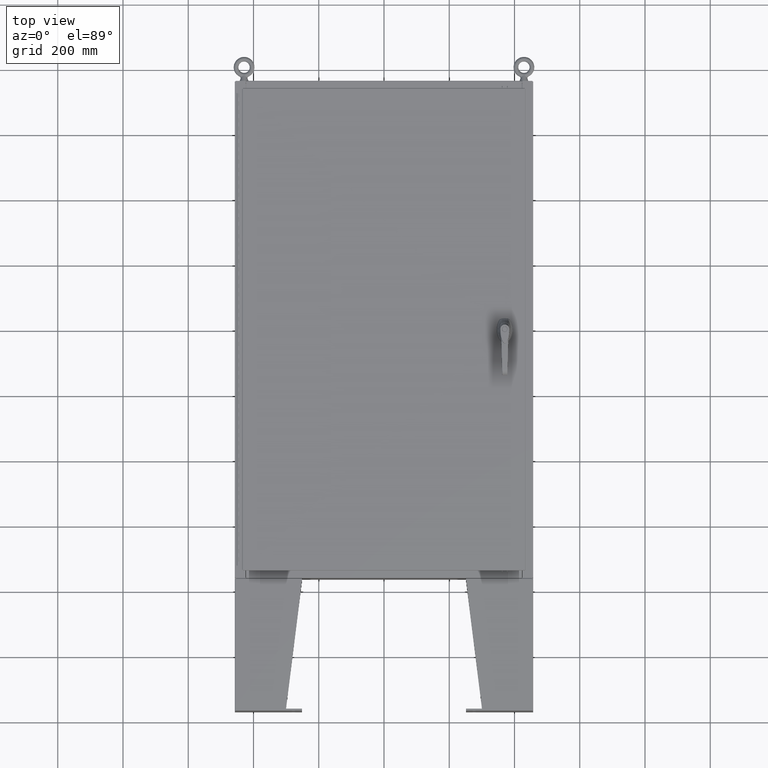
[diagram: clean part render]
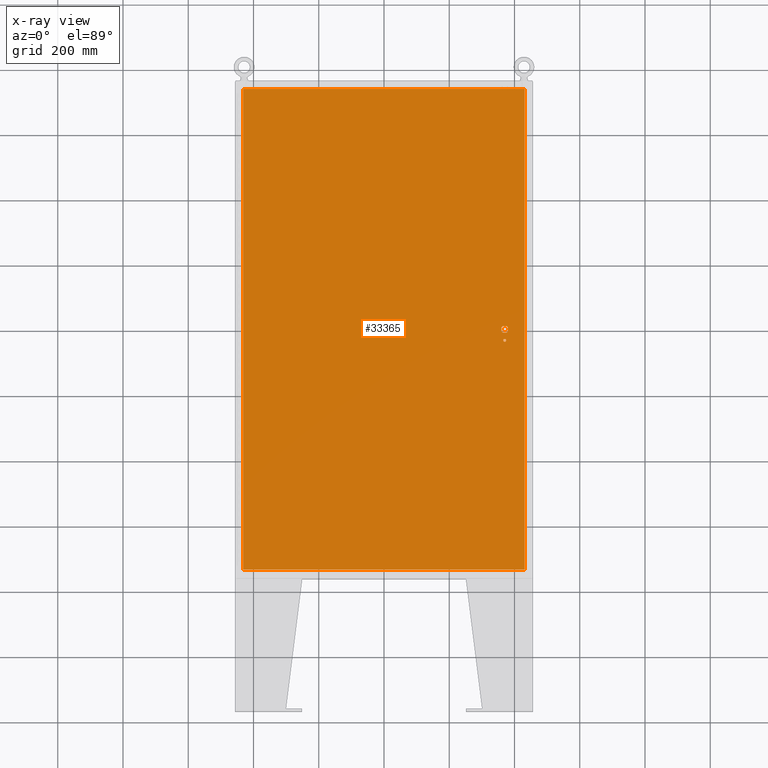
[diagram: x-ray — body ghosted, one internal face saturated and labeled with its STEP entity id]
A machine part, top view, then the same camera in x-ray: the body is ghosted and one INTERNAL B-rep face — a face not visible from any outside direction — is saturated and labeled: STEP entity #33365.
In plain terms, the highlighted planar face has unit normal (0, 0, -1).
Its self-contained STEP definition (entity closure, byte-faithful):
#464 = LINE ( 'NONE', #86708, #30545 ) ;
#1470 = CIRCLE ( 'NONE', #66741, 0.4499999999999168000 ) ;
#2530 = PLANE ( 'NONE',  #3092 ) ;
#3092 = AXIS2_PLACEMENT_3D ( 'NONE', #126693, #81592, #13928 ) ;
#3413 = EDGE_CURVE ( 'NONE', #13303, #71264, #39272, .T. ) ;
#4072 = DIRECTION ( 'NONE',  ( -1.000000000000000000, -5.329070518200740300E-015, 0.0000000000000000000 ) ) ;
#4290 = CARTESIAN_POINT ( 'NONE',  ( 14.74950000000000500, -1.338000000000000100, -0.07470000000000003000 ) ) ;
#5258 = AXIS2_PLACEMENT_3D ( 'NONE', #139553, #71761, #4072 ) ;
#6076 = EDGE_CURVE ( 'NONE', #73642, #117948, #106124, .T. ) ;
#6622 = ORIENTED_EDGE ( 'NONE', *, *, #44528, .T. ) ;
#8533 = VERTEX_POINT ( 'NONE', #41532 ) ;
#9210 = CARTESIAN_POINT ( 'NONE',  ( 14.17500000000007700, 0.2002273707563075900, -0.07470000000000003000 ) ) ;
#9986 = EDGE_CURVE ( 'NONE', #71264, #73642, #85796, .T. ) ;
#11187 = CARTESIAN_POINT ( 'NONE',  ( 14.37777262924369400, -0.4029999999999250300, -0.07470000000000003000 ) ) ;
#11290 = EDGE_CURVE ( 'NONE', #26010, #8533, #13071, .T. ) ;
#11892 = DIRECTION ( 'NONE',  ( -0.0000000000000000000, -0.0000000000000000000, 1.000000000000000000 ) ) ;
#12787 = DIRECTION ( 'NONE',  ( -0.0000000000000000000, -0.0000000000000000000, 1.000000000000000000 ) ) ;
#13071 = CIRCLE ( 'NONE', #5258, 0.4499999999999168000 ) ;
#13303 = VERTEX_POINT ( 'NONE', #141740 ) ;
#13480 = VERTEX_POINT ( 'NONE', #44281 ) ;
#13928 = DIRECTION ( 'NONE',  ( -1.000000000000000000, 0.0000000000000000000, -0.0000000000000000000 ) ) ;
#15629 = CARTESIAN_POINT ( 'NONE',  ( 0.0000000000000000000, 0.4029999999999252000, -0.07470000000000003000 ) ) ;
#16267 = VERTEX_POINT ( 'NONE', #37943 ) ;
#17483 = DIRECTION ( 'NONE',  ( -0.0000000000000000000, -0.0000000000000000000, 1.000000000000000000 ) ) ;
#17703 = DIRECTION ( 'NONE',  ( -0.0000000000000000000, -0.0000000000000000000, 1.000000000000000000 ) ) ;
#22175 = CARTESIAN_POINT ( 'NONE',  ( 16.99030000000000500, -29.00630000000000000, -0.07470000000000019700 ) ) ;
#25548 = AXIS2_PLACEMENT_3D ( 'NONE', #79628, #11892, #91018 ) ;
#25693 = VECTOR ( 'NONE', #53647, 39.37007874015748100 ) ;
#25713 = LINE ( 'NONE', #22175, #82315 ) ;
#26010 = VERTEX_POINT ( 'NONE', #59871 ) ;
#26193 = ORIENTED_EDGE ( 'NONE', *, *, #87468, .T. ) ;
#26255 = DIRECTION ( 'NONE',  ( 0.0000000000000000000, -1.000000000000000000, 0.0000000000000000000 ) ) ;
#26320 = CARTESIAN_POINT ( 'NONE',  ( 14.57800000000000500, 0.0000000000000000000, -0.07470000000000003000 ) ) ;
#26786 = FACE_OUTER_BOUND ( 'NONE', #102390, .T. ) ;
#29116 = CIRCLE ( 'NONE', #25548, 0.1715000000000011500 ) ;
#29814 = ORIENTED_EDGE ( 'NONE', *, *, #61515, .T. ) ;
#30388 = DIRECTION ( 'NONE',  ( 1.000000000000000000, 0.0000000000000000000, 0.0000000000000000000 ) ) ;
#30545 = VECTOR ( 'NONE', #30388, 39.37007874015748100 ) ;
#32401 = CARTESIAN_POINT ( 'NONE',  ( -16.99029999999999800, -29.00630000000000000, -0.07470000000000000300 ) ) ;
#33365 = ADVANCED_FACE ( 'NONE', ( #83367, #26786, #142016 ), #2530, .T. ) ;
#36949 = CARTESIAN_POINT ( 'NONE',  ( 14.40650000000000300, -1.338000000000000100, -0.07470000000000003000 ) ) ;
#37689 = DIRECTION ( 'NONE',  ( -1.000000000000000000, -5.329070518200740300E-015, 0.0000000000000000000 ) ) ;
#37867 = DIRECTION ( 'NONE',  ( 5.457491617345625800E-015, -1.000000000000000000, 0.0000000000000000000 ) ) ;
#37943 = CARTESIAN_POINT ( 'NONE',  ( 14.98099999999993100, -0.2002273707563067300, -0.07470000000000003000 ) ) ;
#39272 = LINE ( 'NONE', #66967, #65794 ) ;
#41132 = EDGE_CURVE ( 'NONE', #100807, #136410, #29116, .T. ) ;
#41463 = CARTESIAN_POINT ( 'NONE',  ( 16.99030000000000500, -29.00630000000000000, -0.07470000000000000300 ) ) ;
#41532 = CARTESIAN_POINT ( 'NONE',  ( 14.77822737075631400, 0.4029999999999250300, -0.07470000000000003000 ) ) ;
#43806 = ORIENTED_EDGE ( 'NONE', *, *, #6076, .F. ) ;
#44281 = CARTESIAN_POINT ( 'NONE',  ( 14.17500000000007700, -0.2002273707563079800, -0.07470000000000003000 ) ) ;
#44528 = EDGE_CURVE ( 'NONE', #66247, #13480, #82204, .T. ) ;
#45866 = VECTOR ( 'NONE', #96041, 39.37007874015748100 ) ;
#50188 = EDGE_CURVE ( 'NONE', #136410, #100807, #90065, .T. ) ;
#51450 = CARTESIAN_POINT ( 'NONE',  ( -16.99029999999999400, 29.00630000000000000, -0.07470000000000000300 ) ) ;
#53647 = DIRECTION ( 'NONE',  ( 0.0000000000000000000, -1.000000000000000000, 0.0000000000000000000 ) ) ;
#53882 = LINE ( 'NONE', #117066, #114145 ) ;
#54791 = ORIENTED_EDGE ( 'NONE', *, *, #9986, .F. ) ;
#55967 = EDGE_CURVE ( 'NONE', #78353, #86353, #464, .T. ) ;
#59871 = CARTESIAN_POINT ( 'NONE',  ( 14.98099999999993100, 0.2002273707563075900, -0.07470000000000003000 ) ) ;
#61515 = EDGE_CURVE ( 'NONE', #86353, #16267, #133858, .T. ) ;
#62559 = EDGE_CURVE ( 'NONE', #117948, #13303, #25713, .T. ) ;
#65794 = VECTOR ( 'NONE', #86793, 39.37007874015748100 ) ;
#66247 = VERTEX_POINT ( 'NONE', #9210 ) ;
#66741 = AXIS2_PLACEMENT_3D ( 'NONE', #80492, #12787, #91902 ) ;
#66967 = CARTESIAN_POINT ( 'NONE',  ( 16.99030000000000500, 29.00630000000000300, -0.07469999999999804600 ) ) ;
#67641 = ORIENTED_EDGE ( 'NONE', *, *, #92305, .F. ) ;
#70150 = CARTESIAN_POINT ( 'NONE',  ( 14.37777262924369400, 0.4029999999999252000, -0.07470000000000003000 ) ) ;
#71264 = VERTEX_POINT ( 'NONE', #51450 ) ;
#71761 = DIRECTION ( 'NONE',  ( -0.0000000000000000000, -0.0000000000000000000, 1.000000000000000000 ) ) ;
#73642 = VERTEX_POINT ( 'NONE', #32401 ) ;
#73962 = LINE ( 'NONE', #15629, #104156 ) ;
#76251 = EDGE_LOOP ( 'NONE', ( #29814, #67641, #92284, #110150, #132211, #6622, #26193, #107773 ) ) ;
#78353 = VERTEX_POINT ( 'NONE', #11187 ) ;
#79628 = CARTESIAN_POINT ( 'NONE',  ( 14.57800000000000500, -1.338000000000000100, -0.07470000000000003000 ) ) ;
#80492 = CARTESIAN_POINT ( 'NONE',  ( 14.57800000000000500, 0.0000000000000000000, -0.07470000000000003000 ) ) ;
#81592 = DIRECTION ( 'NONE',  ( 0.0000000000000000000, 0.0000000000000000000, -1.000000000000000000 ) ) ;
#82204 = LINE ( 'NONE', #119323, #85721 ) ;
#82315 = VECTOR ( 'NONE', #101374, 39.37007874015748100 ) ;
#83367 = FACE_BOUND ( 'NONE', #118838, .T. ) ;
#85066 = EDGE_CURVE ( 'NONE', #109844, #66247, #113048, .T. ) ;
#85171 = CARTESIAN_POINT ( 'NONE',  ( 14.57800000000000500, 0.0000000000000000000, -0.07470000000000003000 ) ) ;
#85376 = CARTESIAN_POINT ( 'NONE',  ( 14.57800000000000500, -1.338000000000000100, -0.07470000000000003000 ) ) ;
#85673 = CARTESIAN_POINT ( 'NONE',  ( 14.77822737075631400, -0.4029999999999252000, -0.07470000000000003000 ) ) ;
#85721 = VECTOR ( 'NONE', #26255, 39.37007874015748100 ) ;
#85796 = LINE ( 'NONE', #143612, #25693 ) ;
#86314 = ORIENTED_EDGE ( 'NONE', *, *, #41132, .T. ) ;
#86353 = VERTEX_POINT ( 'NONE', #85673 ) ;
#86708 = CARTESIAN_POINT ( 'NONE',  ( 0.0000000000000000000, -0.4029999999999252000, -0.07470000000000003000 ) ) ;
#86793 = DIRECTION ( 'NONE',  ( -1.000000000000000000, -0.0000000000000000000, -0.0000000000000000000 ) ) ;
#87468 = EDGE_CURVE ( 'NONE', #13480, #78353, #1470, .T. ) ;
#88726 = EDGE_CURVE ( 'NONE', #8533, #109844, #73962, .T. ) ;
#89661 = AXIS2_PLACEMENT_3D ( 'NONE', #85376, #17703, #96834 ) ;
#90065 = CIRCLE ( 'NONE', #89661, 0.1715000000000011500 ) ;
#91018 = DIRECTION ( 'NONE',  ( -1.000000000000000000, 0.0000000000000000000, 0.0000000000000000000 ) ) ;
#91902 = DIRECTION ( 'NONE',  ( -1.000000000000000000, -1.776356839400246700E-015, 0.0000000000000000000 ) ) ;
#92284 = ORIENTED_EDGE ( 'NONE', *, *, #11290, .T. ) ;
#92305 = EDGE_CURVE ( 'NONE', #26010, #16267, #53882, .T. ) ;
#96041 = DIRECTION ( 'NONE',  ( 1.000000000000000000, -0.0000000000000000000, -0.0000000000000000000 ) ) ;
#96615 = DIRECTION ( 'NONE',  ( -1.000000000000000000, -1.776356839400246700E-015, 0.0000000000000000000 ) ) ;
#96834 = DIRECTION ( 'NONE',  ( -1.000000000000000000, 0.0000000000000000000, 0.0000000000000000000 ) ) ;
#98918 = AXIS2_PLACEMENT_3D ( 'NONE', #26320, #105546, #37689 ) ;
#100807 = VERTEX_POINT ( 'NONE', #4290 ) ;
#101374 = DIRECTION ( 'NONE',  ( 0.0000000000000000000, 1.000000000000000000, 0.0000000000000000000 ) ) ;
#102390 = EDGE_LOOP ( 'NONE', ( #113597, #43806, #54791, #138354 ) ) ;
#104156 = VECTOR ( 'NONE', #128411, 39.37007874015748100 ) ;
#105546 = DIRECTION ( 'NONE',  ( -0.0000000000000000000, -0.0000000000000000000, 1.000000000000000000 ) ) ;
#106124 = LINE ( 'NONE', #129984, #45866 ) ;
#107773 = ORIENTED_EDGE ( 'NONE', *, *, #55967, .T. ) ;
#109844 = VERTEX_POINT ( 'NONE', #70150 ) ;
#110150 = ORIENTED_EDGE ( 'NONE', *, *, #88726, .T. ) ;
#113048 = CIRCLE ( 'NONE', #98918, 0.4499999999999168000 ) ;
#113597 = ORIENTED_EDGE ( 'NONE', *, *, #62559, .F. ) ;
#114145 = VECTOR ( 'NONE', #37867, 39.37007874015748100 ) ;
#117066 = CARTESIAN_POINT ( 'NONE',  ( 14.98099999999993100, 8.175868191945444300E-014, -0.07470000000000003000 ) ) ;
#117948 = VERTEX_POINT ( 'NONE', #41463 ) ;
#118838 = EDGE_LOOP ( 'NONE', ( #86314, #141008 ) ) ;
#119323 = CARTESIAN_POINT ( 'NONE',  ( 14.17500000000007700, 0.0000000000000000000, -0.07470000000000003000 ) ) ;
#126693 = CARTESIAN_POINT ( 'NONE',  ( 0.0000000000000000000, 0.0000000000000000000, -0.07470000000000000300 ) ) ;
#128411 = DIRECTION ( 'NONE',  ( -1.000000000000000000, 0.0000000000000000000, 0.0000000000000000000 ) ) ;
#129984 = CARTESIAN_POINT ( 'NONE',  ( -16.99029999999999800, -29.00630000000000300, -0.07469999999999804600 ) ) ;
#132211 = ORIENTED_EDGE ( 'NONE', *, *, #85066, .T. ) ;
#133858 = CIRCLE ( 'NONE', #143613, 0.4499999999999168000 ) ;
#136410 = VERTEX_POINT ( 'NONE', #36949 ) ;
#138354 = ORIENTED_EDGE ( 'NONE', *, *, #3413, .F. ) ;
#139553 = CARTESIAN_POINT ( 'NONE',  ( 14.57800000000000500, 0.0000000000000000000, -0.07470000000000003000 ) ) ;
#141008 = ORIENTED_EDGE ( 'NONE', *, *, #50188, .T. ) ;
#141740 = CARTESIAN_POINT ( 'NONE',  ( 16.99030000000000500, 29.00630000000000000, -0.07470000000000000300 ) ) ;
#142016 = FACE_BOUND ( 'NONE', #76251, .T. ) ;
#143612 = CARTESIAN_POINT ( 'NONE',  ( -16.99029999999999400, 29.00630000000000000, -0.07469999999999582500 ) ) ;
#143613 = AXIS2_PLACEMENT_3D ( 'NONE', #85171, #17483, #96615 ) ;